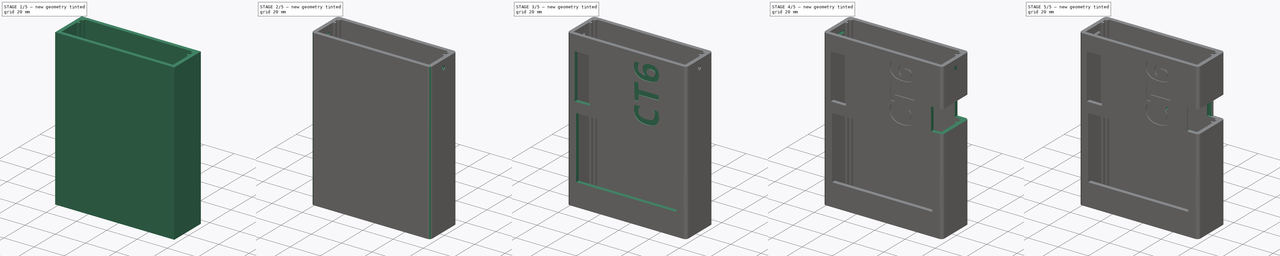
[diagram: build sequence overview — one tinted view per stage of 5, left to right]
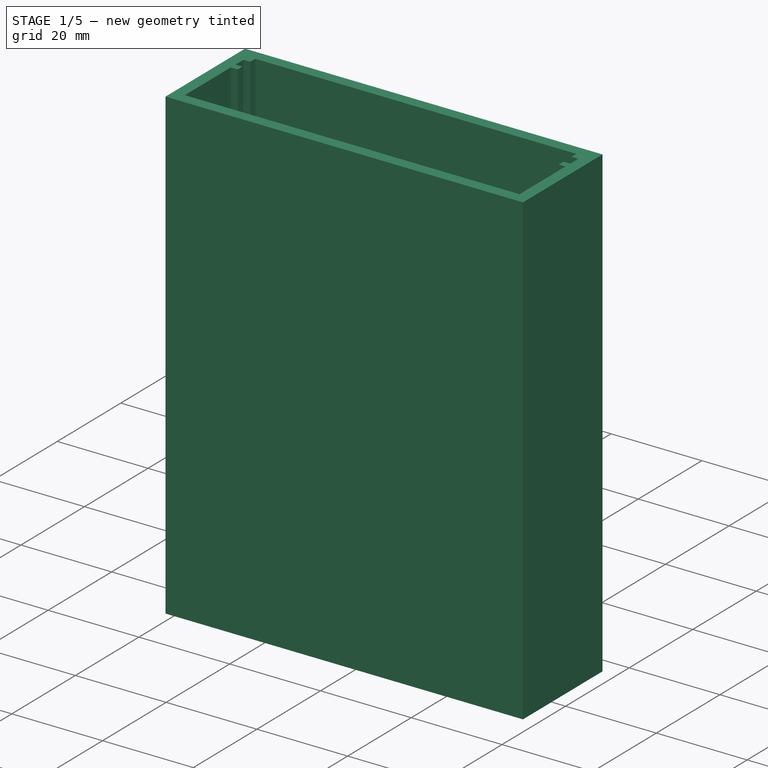
[diagram: stage 1 of 5 — iso view after this stage's code; geometry added in this stage tinted green]
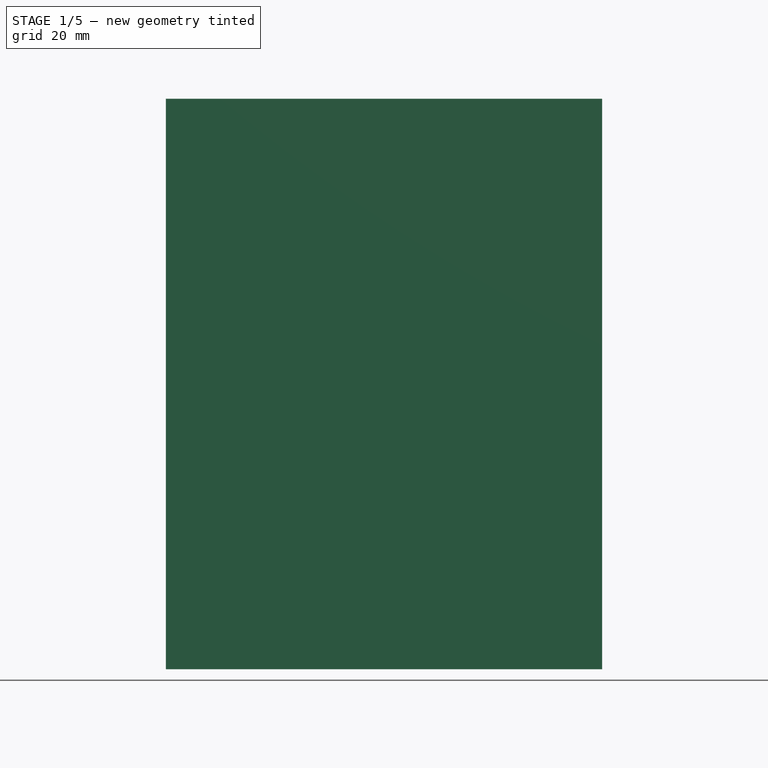
[diagram: stage 1 of 5 — front view after this stage's code; geometry added in this stage tinted green]
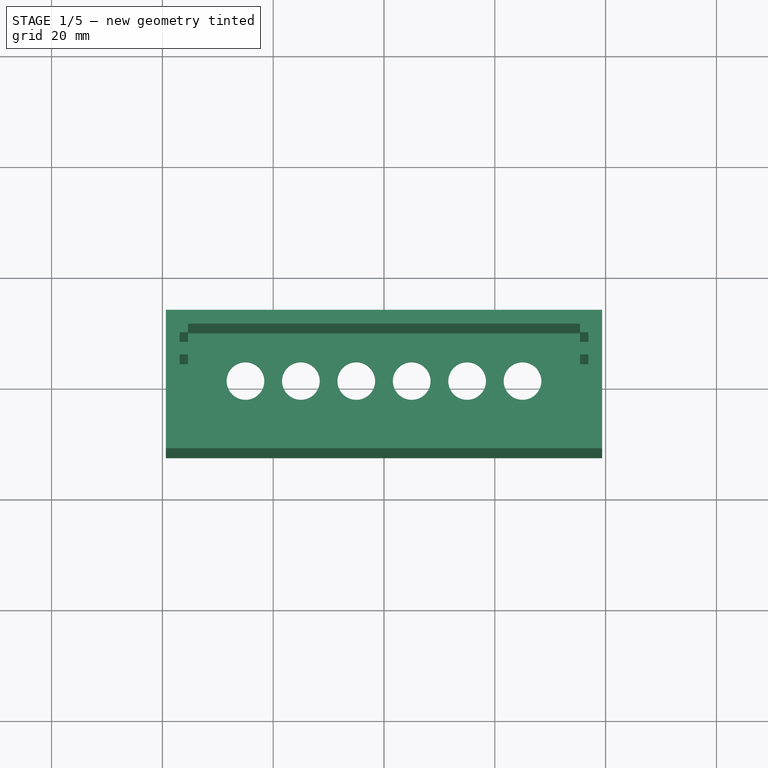
[diagram: stage 1 of 5 — top view after this stage's code; geometry added in this stage tinted green]
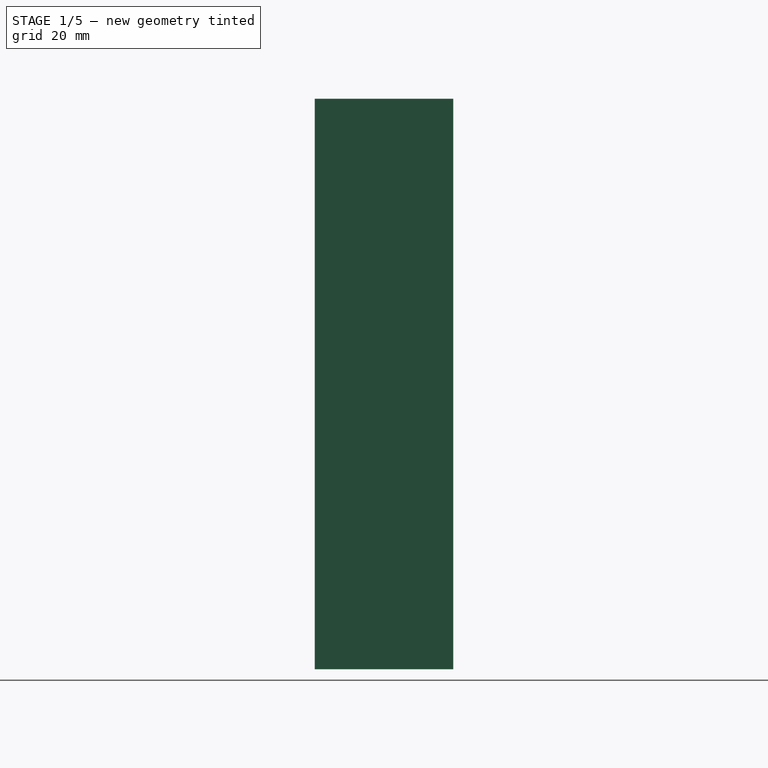
[diagram: stage 1 of 5 — right view after this stage's code; geometry added in this stage tinted green]
FCSTD DOCUMENT  (FreeCAD 0.21R33694 (Git))
Label: box
License: All rights reserved
LicenseURL: http://en.wikipedia.org/wiki/All_rights_reserved
objects: Sketcher::SketchObject×23, PartDesign::Pocket×19, PartDesign::Pad×11, Part::Part2DObjectPython×7, PartDesign::Chamfer×7, PartDesign::Fillet×1, PartDesign::Body×1
note: 107 computed .brp shape members not serialized (recipe doc carries the construction recipe); baked Part::Feature solids carry a one-line shape summary decoded from their .brp

FEATURE [Sketcher::SketchObject] Sketch
  FullyConstrained = true
  MapMode = 5
  Support = -> [XY_Plane]
  sketch-geometry (4):
    g0: LineSegment StartX=-36.875 StartY=10 StartZ=0 EndX=36.875 EndY=10 EndZ=0
    g1: LineSegment StartX=36.875 StartY=10 StartZ=0 EndX=36.875 EndY=-10 EndZ=0
    g2: LineSegment StartX=36.875 StartY=-10 StartZ=0 EndX=-36.875 EndY=-10 EndZ=0
    g3: LineSegment StartX=-36.875 StartY=-10 StartZ=0 EndX=-36.875 EndY=10 EndZ=0
  constraints (12):
    c: Coincident(g0,g1)
    c: Coincident(g1,g2)
    c: Coincident(g2,g3)
    c: Coincident(g3,g0)
    c: Horizontal(g0)
    c: Horizontal(g2)
    c: Vertical(g1)
    c: Vertical(g3)
    c: DistanceY(g1,g1) = 20
    c: DistanceX(g0,g0) = 73.75
    c: DistanceX(g0,g-1) = 36.875
    c: DistanceY(g-1,g0) = 10
FEATURE [PartDesign::Pad] Pad
  Direction = (0,0,1)
  Length = 2.5
  Length2 = 10
  Profile = -> Sketch
  ReferenceAxis = -> Sketch [N_Axis]
  Type = 0
FEATURE [Sketcher::SketchObject] Sketch001
  ExternalGeometry = -> [Pad]
  FullyConstrained = true
  MapMode = 5
  Placement = pos=(36.875,0,0) rot=(0.57735,0.57735,0.57735;2.0944rad)
  Support = -> [Pad]
  sketch-geometry (4):
    g0: LineSegment StartX=-12.5 StartY=0 StartZ=0 EndX=12.5 EndY=0 EndZ=0
    g1: LineSegment StartX=12.5 StartY=0 StartZ=0 EndX=12.5 EndY=102.95 EndZ=0
    g2: LineSegment StartX=12.5 StartY=102.95 StartZ=0 EndX=-12.5 EndY=102.95 EndZ=0
    g3: LineSegment StartX=-12.5 StartY=102.95 StartZ=0 EndX=-12.5 EndY=0 EndZ=0
  constraints (12):
    c: Coincident(g0,g1)
    c: Coincident(g1,g2)
    c: Coincident(g2,g3)
    c: Coincident(g3,g0)
    c: Horizontal(g0)
    c: Horizontal(g2)
    c: Vertical(g1)
    c: Vertical(g3)
    c: PointOnObject(g0,g-1)
    c: DistanceX(g-3,g0) = 2.5
    c: DistanceX(g0,g-4) = 2.5
    c: DistanceY(g-3,g1) = 100.45
FEATURE [PartDesign::Pad] Pad001
  BaseFeature = -> Pad
  Direction = (1,0,0)
  Length = 2.5
  Length2 = 10
  Profile = -> Sketch001
  ReferenceAxis = -> Sketch001 [N_Axis]
  Type = 0
FEATURE [Sketcher::SketchObject] Sketch002
  ExternalGeometry = -> [Pad001]
  FullyConstrained = true
  MapMode = 5
  Placement = pos=(-36.875,0,0) rot=(0.57735,-0.57735,-0.57735;2.0944rad)
  Support = -> [Pad001]
  sketch-geometry (4):
    g0: LineSegment StartX=-12.5 StartY=0 StartZ=0 EndX=12.5 EndY=0 EndZ=0
    g1: LineSegment StartX=12.5 StartY=0 StartZ=0 EndX=12.5 EndY=102.95 EndZ=0
    g2: LineSegment StartX=12.5 StartY=102.95 StartZ=0 EndX=-12.5 EndY=102.95 EndZ=0
    g3: LineSegment StartX=-12.5 StartY=102.95 StartZ=0 EndX=-12.5 EndY=0 EndZ=0
  constraints (11):
    c: Coincident(g0,g1)
    c: Coincident(g1,g2)
    c: Coincident(g2,g3)
    c: Coincident(g3,g0)
    c: Horizontal(g0)
    c: Horizontal(g2)
    c: Vertical(g1)
    c: Vertical(g3)
    c: Coincident(g0,g-5)
    c: DistanceX(g0,g-4) = 0
    c: DistanceY(g1,g-3) = 0
FEATURE [PartDesign::Pad] Pad002
  BaseFeature = -> Pad001
  Direction = (-1,0,0)
  Length = 2.5
  Length2 = 10
  Profile = -> Sketch002
  ReferenceAxis = -> Sketch002 [N_Axis]
  Type = 0
FEATURE [Sketcher::SketchObject] Sketch003
  ExternalGeometry = -> [Pad002]
  FullyConstrained = true
  MapMode = 5
  Placement = pos=(0,-10,0) rot=(1,0,0;1.5708rad)
  Support = -> [Pad002]
  sketch-geometry (4):
    g0: LineSegment StartX=-36.875 StartY=0 StartZ=0 EndX=36.875 EndY=0 EndZ=0
    g1: LineSegment StartX=36.875 StartY=0 StartZ=0 EndX=36.875 EndY=102.95 EndZ=0
    g2: LineSegment StartX=36.875 StartY=102.95 StartZ=0 EndX=-36.875 EndY=102.95 EndZ=0
    g3: LineSegment StartX=-36.875 StartY=102.95 StartZ=0 EndX=-36.875 EndY=0 EndZ=0
  constraints (11):
    c: Coincident(g0,g1)
    c: Coincident(g1,g2)
    c: Coincident(g2,g3)
    c: Coincident(g3,g0)
    c: Horizontal(g0)
    c: Horizontal(g2)
    c: Vertical(g1)
    c: Vertical(g3)
    c: Coincident(g0,g-3)
    c: DistanceX(g0,g-4) = 0
    c: DistanceY(g1,g-5) = 0
FEATURE [PartDesign::Pad] Pad003
  BaseFeature = -> Pad002
  Direction = (0,-1,2e-16)
  Length = 2.5
  Length2 = 10
  Profile = -> Sketch003
  ReferenceAxis = -> Sketch003 [N_Axis]
  Type = 0
FEATURE [Sketcher::SketchObject] Sketch004
  ExternalGeometry = -> [Pad003]
  FullyConstrained = true
  MapMode = 5
  Placement = pos=(0,10,0) rot=(0,0.707107,0.707107;3.14159rad)
  Support = -> [Pad003]
  sketch-geometry (4):
    g0: LineSegment StartX=-36.875 StartY=0 StartZ=0 EndX=36.875 EndY=0 EndZ=0
    g1: LineSegment StartX=36.875 StartY=0 StartZ=0 EndX=36.875 EndY=102.95 EndZ=0
    g2: LineSegment StartX=36.875 StartY=102.95 StartZ=0 EndX=-36.875 EndY=102.95 EndZ=0
    g3: LineSegment StartX=-36.875 StartY=102.95 StartZ=0 EndX=-36.875 EndY=0 EndZ=0
  constraints (11):
    c: Coincident(g0,g1)
    c: Coincident(g1,g2)
    c: Coincident(g2,g3)
    c: Coincident(g3,g0)
    c: Horizontal(g0)
    c: Horizontal(g2)
    c: Vertical(g1)
    c: Vertical(g3)
    c: Coincident(g0,g-3)
    c: DistanceX(g0,g-4) = 0
    c: DistanceY(g1,g-5) = 0
FEATURE [PartDesign::Pad] Pad004
  BaseFeature = -> Pad003
  Direction = (0,1,-2e-16)
  Length = 2.5
  Length2 = 10
  Profile = -> Sketch004
  ReferenceAxis = -> Sketch004 [N_Axis]
  Type = 0
FEATURE [Sketcher::SketchObject] Sketch005  label="Sketch_3_5_mm_jack_holes"
  ExternalGeometry = -> [Pad004]
  FullyConstrained = true
  MapMode = 5
  Placement = pos=(0,0,0) rot=(1,0,0;3.14159rad)
  Support = -> [Pad004]
  sketch-geometry (6):
    g0: Circle CenterX=-25 CenterY=-1.4 CenterZ=0 NormalX=0 NormalY=0 NormalZ=1 AngleXU=0 Radius=3.4
    g1: Circle CenterX=-15 CenterY=-1.4 CenterZ=0 NormalX=0 NormalY=0 NormalZ=1 AngleXU=0 Radius=3.4
    g2: Circle CenterX=-5 CenterY=-1.4 CenterZ=0 NormalX=0 NormalY=0 NormalZ=1 AngleXU=0 Radius=3.4
    g3: Circle CenterX=5 CenterY=-1.4 CenterZ=0 NormalX=0 NormalY=0 NormalZ=1 AngleXU=0 Radius=3.4
    g4: Circle CenterX=15 CenterY=-1.4 CenterZ=0 NormalX=0 NormalY=0 NormalZ=1 AngleXU=0 Radius=3.4
    g5: Circle CenterX=25 CenterY=-1.4 CenterZ=0 NormalX=0 NormalY=0 NormalZ=1 AngleXU=0 Radius=3.4
  constraints (14):
    c: Equal(g0, g1-g5) x5
    c: Diameter(g0) = 6.8
    c: Horizontal(g0,g1)
    c: Horizontal(g1,g2)
    c: Horizontal(g2,g3)
    c: Horizontal(g3,g4)
    c: Horizontal(g4,g5)
    c: DistanceX(g0,g1) = 10
    c: DistanceX(g1,g2) = 10
    c: DistanceX(g2,g3) = 10
    c: DistanceX(g3,g4) = 10
    c: DistanceX(g4,g5) = 10
    c: DistanceX(g2,g-1) = 5
    c: DistanceY(g-3,g5) = 8.6
FEATURE [PartDesign::Pocket] Pocket
  BaseFeature = -> Pad004
  Direction = (0,0,1)
  Length = 5
  Length2 = 5
  Profile = -> Sketch005
  ReferenceAxis = -> Sketch005 [N_Axis]
  Type = 0
FEATURE [Sketcher::SketchObject] Sketch006
  ExternalGeometry = -> [Pocket]
  FullyConstrained = true
  MapMode = 5
  Placement = pos=(-36.875,0,0) rot=(0.57735,0.57735,0.57735;2.0944rad)
  Support = -> [Pocket]
  sketch-geometry (8):
    g0: LineSegment StartX=8.45 StartY=2.5 StartZ=0 EndX=10 EndY=2.5 EndZ=0
    g1: LineSegment StartX=10 StartY=2.5 StartZ=0 EndX=10 EndY=102.95 EndZ=0
    g2: LineSegment StartX=10 StartY=102.95 StartZ=0 EndX=8.45 EndY=102.95 EndZ=0
    g3: LineSegment StartX=8.45 StartY=102.95 StartZ=0 EndX=8.45 EndY=2.5 EndZ=0
    g4: LineSegment StartX=5.95 StartY=2.5 StartZ=0 EndX=4.45 EndY=2.5 EndZ=0
    g5: LineSegment StartX=4.45 StartY=2.5 StartZ=0 EndX=4.45 EndY=102.95 EndZ=0
    g6: LineSegment StartX=4.45 StartY=102.95 StartZ=0 EndX=5.95 EndY=102.95 EndZ=0
    g7: LineSegment StartX=5.95 StartY=102.95 StartZ=0 EndX=5.95 EndY=2.5 EndZ=0
  constraints (23):
    c: Coincident(g0,g1)
    c: Coincident(g1,g2)
    c: Coincident(g2,g3)
    c: Coincident(g3,g0)
    c: Horizontal(g0)
    c: Horizontal(g2)
    c: Vertical(g1)
    c: Vertical(g3)
    c: Coincident(g4,g5)
    c: Coincident(g5,g6)
    c: Coincident(g6,g7)
    c: Coincident(g7,g4)
    c: Horizontal(g4)
    c: Horizontal(g6)
    c: Vertical(g5)
    c: Vertical(g7)
    c: Coincident(g1,g-3)
    c: DistanceX(g2,g2) = 1.55
    c: DistanceX(g6,g2) = 2.5
    c: DistanceX(g6,g6) = 1.5
    c: Horizontal(g2,g6)
    c: Horizontal(g0,g4)
    c: Horizontal(g4,g-4)
FEATURE [PartDesign::Pad] Pad005
  BaseFeature = -> Pocket
  Direction = (1,0,0)
  Length = 1.5
  Length2 = 10
  Profile = -> Sketch006
  ReferenceAxis = -> Sketch006 [N_Axis]
  Type = 0
FEATURE [Sketcher::SketchObject] Sketch007
  ExternalGeometry = -> [Pad005]
  FullyConstrained = true
  MapMode = 5
  Placement = pos=(36.875,0,0) rot=(0.57735,-0.57735,-0.57735;2.0944rad)
  Support = -> [Pad005]
  sketch-geometry (8):
    g0: LineSegment StartX=-10 StartY=2.5 StartZ=0 EndX=-8.45 EndY=2.5 EndZ=0
    g1: LineSegment StartX=-8.45 StartY=2.5 StartZ=0 EndX=-8.45 EndY=102.95 EndZ=0
    g2: LineSegment StartX=-8.45 StartY=102.95 StartZ=0 EndX=-10 EndY=102.95 EndZ=0
    g3: LineSegment StartX=-10 StartY=102.95 StartZ=0 EndX=-10 EndY=2.5 EndZ=0
    g4: LineSegment StartX=-5.95 StartY=2.5 StartZ=0 EndX=-4.45 EndY=2.5 EndZ=0
    g5: LineSegment StartX=-4.45 StartY=2.5 StartZ=0 EndX=-4.45 EndY=102.95 EndZ=0
    g6: LineSegment StartX=-4.45 StartY=102.95 StartZ=0 EndX=-5.95 EndY=102.95 EndZ=0
    g7: LineSegment StartX=-5.95 StartY=102.95 StartZ=0 EndX=-5.95 EndY=2.5 EndZ=0
  constraints (23):
    c: Coincident(g0,g1)
    c: Coincident(g1,g2)
    c: Coincident(g2,g3)
    c: Coincident(g3,g0)
    c: Horizontal(g0)
    c: Horizontal(g2)
    c: Vertical(g1)
    c: Vertical(g3)
    c: Coincident(g4,g5)
    c: Coincident(g5,g6)
    c: Coincident(g6,g7)
    c: Coincident(g7,g4)
    c: Horizontal(g4)
    c: Horizontal(g6)
    c: Vertical(g5)
    c: Vertical(g7)
    c: Coincident(g2,g-3)
    c: DistanceX(g2,g2) = 1.55
    c: DistanceX(g1,g6) = 2.5
    c: DistanceX(g6,g6) = 1.5
    c: Horizontal(g1,g6)
    c: Horizontal(g0,g4)
    c: Horizontal(g4,g-4)
FEATURE [PartDesign::Pad] Pad006
  BaseFeature = -> Pad005
  Direction = (-1,0,0)
  Length = 1.5
  Length2 = 10
  Profile = -> Sketch007
  ReferenceAxis = -> Sketch007 [N_Axis]
  Type = 0
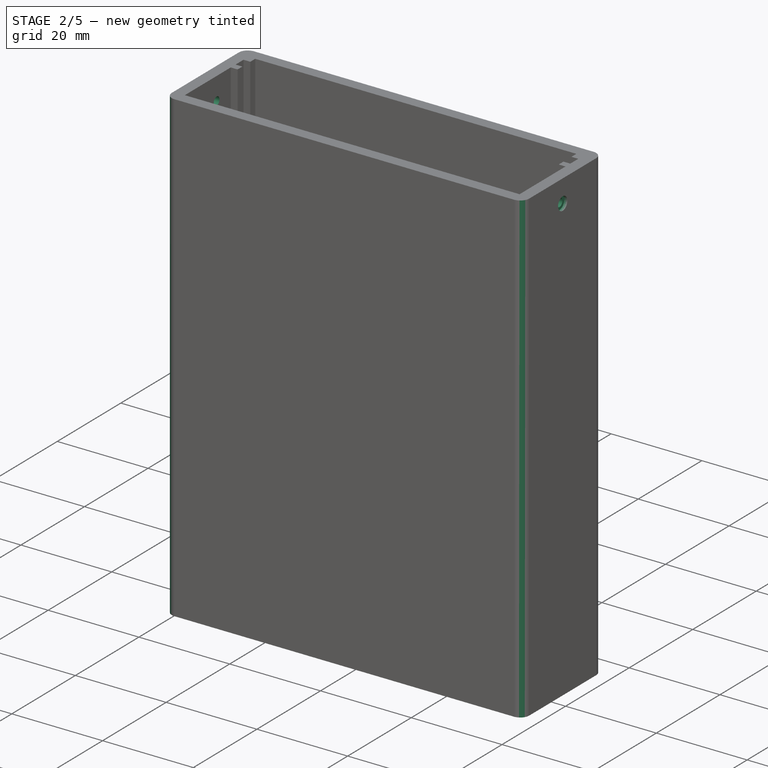
[diagram: stage 2 of 5 — iso view after this stage's code; geometry added in this stage tinted green]
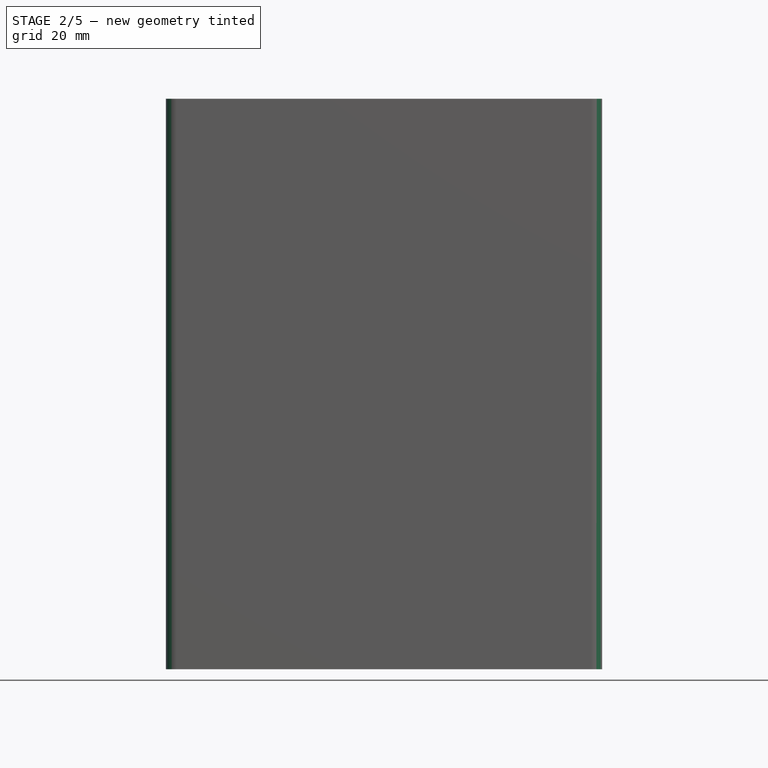
[diagram: stage 2 of 5 — front view after this stage's code; geometry added in this stage tinted green]
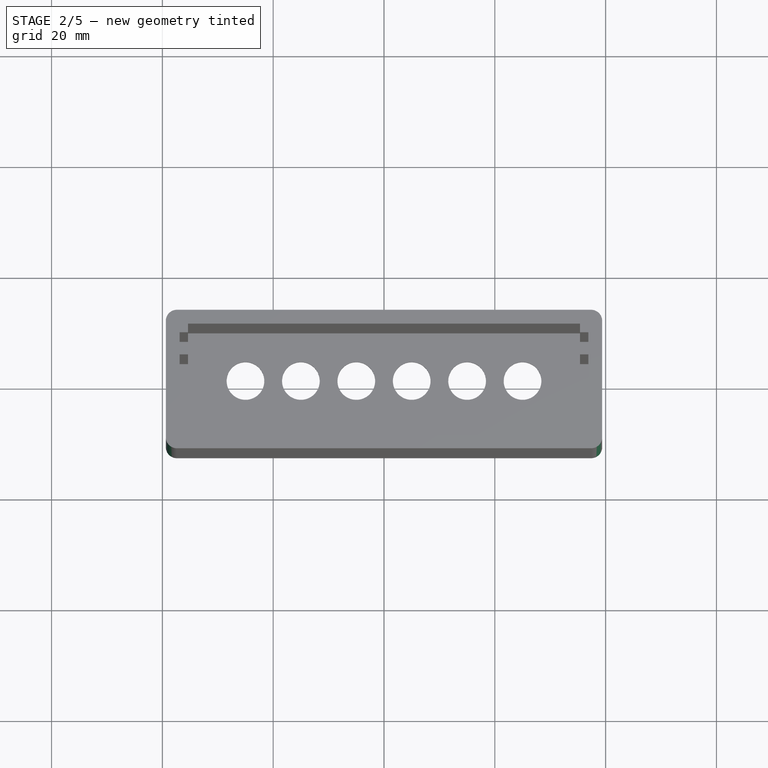
[diagram: stage 2 of 5 — top view after this stage's code; geometry added in this stage tinted green]
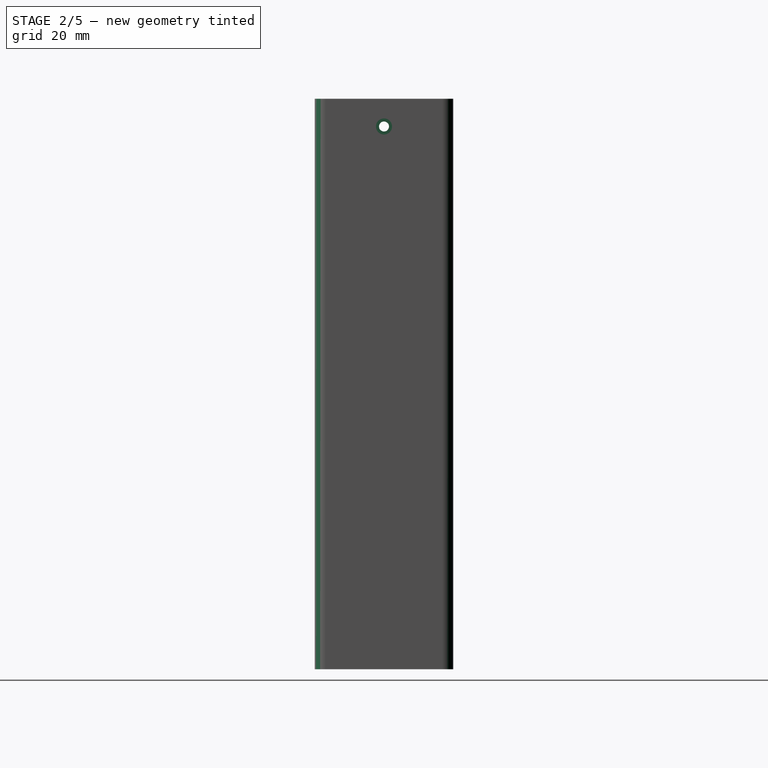
[diagram: stage 2 of 5 — right view after this stage's code; geometry added in this stage tinted green]
FEATURE [Sketcher::SketchObject] Sketch008
  ExternalGeometry = -> [Pad006]
  FullyConstrained = true
  MapMode = 5
  Placement = pos=(-39.375,0,0) rot=(0.57735,-0.57735,-0.57735;2.0944rad)
  Support = -> [Pad006]
  sketch-geometry (1):
    g0: Circle CenterX=0 CenterY=97.95 CenterZ=0 NormalX=0 NormalY=0 NormalZ=1 AngleXU=0 Radius=1.45
  constraints (3):
    c: PointOnObject(g0,g-2)
    c: DistanceY(g0,g-3) = 5
    c: Diameter(g0) = 2.9
FEATURE [PartDesign::Pocket] Pocket001
  BaseFeature = -> Pad006
  Direction = (1,0,0)
  Length = 0.7
  Length2 = 5
  Profile = -> Sketch008
  ReferenceAxis = -> Sketch008 [N_Axis]
  Type = 0
FEATURE [Sketcher::SketchObject] Sketch009
  ExternalGeometry = -> [Pocket001]
  FullyConstrained = true
  MapMode = 5
  Placement = pos=(-38.675,0,0) rot=(0.57735,-0.57735,-0.57735;2.0944rad)
  Support = -> [Pocket001]
  sketch-geometry (1):
    g0: Circle CenterX=0 CenterY=97.95 CenterZ=0 NormalX=0 NormalY=0 NormalZ=1 AngleXU=0 Radius=0.9
  constraints (3):
    c: PointOnObject(g0,g-2)
    c: Diameter(g0) = 1.8
    c: DistanceY(g0,g-3) = 5
FEATURE [PartDesign::Pocket] Pocket002
  BaseFeature = -> Pocket001
  Direction = (1,0,0)
  Length = 5
  Length2 = 5
  Profile = -> Sketch009
  ReferenceAxis = -> Sketch009 [N_Axis]
  Type = 0
FEATURE [Sketcher::SketchObject] Sketch010
  ExternalGeometry = -> [Pocket002]
  FullyConstrained = true
  MapMode = 5
  Placement = pos=(39.375,0,0) rot=(0.57735,0.57735,0.57735;2.0944rad)
  Support = -> [Pocket002]
  sketch-geometry (1):
    g0: Circle CenterX=0 CenterY=97.95 CenterZ=0 NormalX=0 NormalY=0 NormalZ=1 AngleXU=0 Radius=1.45
  constraints (3):
    c: PointOnObject(g0,g-2)
    c: Diameter(g0) = 2.9
    c: DistanceY(g0,g-3) = 5
FEATURE [PartDesign::Pocket] Pocket003
  BaseFeature = -> Pocket002
  Direction = (-1,0,0)
  Length = 0.7
  Length2 = 5
  Profile = -> Sketch010
  ReferenceAxis = -> Sketch010 [N_Axis]
  Type = 0
FEATURE [Sketcher::SketchObject] Sketch011
  ExternalGeometry = -> [Pocket003]
  FullyConstrained = true
  MapMode = 5
  Placement = pos=(38.675,0,0) rot=(0.57735,0.57735,0.57735;2.0944rad)
  Support = -> [Pocket003]
  sketch-geometry (1):
    g0: Circle CenterX=0 CenterY=97.95 CenterZ=0 NormalX=0 NormalY=0 NormalZ=1 AngleXU=0 Radius=0.9
  constraints (3):
    c: PointOnObject(g0,g-2)
    c: DistanceY(g0,g-3) = 5
    c: Diameter(g0) = 1.8
FEATURE [PartDesign::Pocket] Pocket004
  BaseFeature = -> Pocket003
  Direction = (-1,0,0)
  Length = 5
  Length2 = 5
  Profile = -> Sketch011
  ReferenceAxis = -> Sketch011 [N_Axis]
  Type = 0
FEATURE [PartDesign::Fillet] Fillet
  Base = -> Pocket004 [Edge76,Edge74,Edge9,Edge12]
  BaseFeature = -> Pocket004
  Radius = 2
  SupportTransform = false
  UseAllEdges = false
FEATURE [Part::Part2DObjectPython] ShapeString  # Draft 2D object (typed FeaturePython)
  FontFile = <path>
  MakeFace = true
  Placement = pos=(-27.7624,-3.33748,0) rot=(1,0,0;3.14159rad)
  Size = 6
  String = 1
  Tracking = 0
FEATURE [Part::Part2DObjectPython] ShapeString001  # Draft 2D object (typed FeaturePython)
  FontFile = <path>
  MakeFace = true
  Placement = pos=(-17.582,-3.32246,0) rot=(1,0,0;3.14159rad)
  Size = 6
  String = 2
  Tracking = 0
FEATURE [Part::Part2DObjectPython] ShapeString002  # Draft 2D object (typed FeaturePython)
  FontFile = <path>
  MakeFace = true
  Placement = pos=(-7.67591,-3.47804,0) rot=(1,0,0;3.14159rad)
  Size = 6
  String = 3
  Tracking = 0
FEATURE [Part::Part2DObjectPython] ShapeString003  # Draft 2D object (typed FeaturePython)
  FontFile = <path>
  MakeFace = true
  Placement = pos=(2.11873,-3.32196,0) rot=(1,0,0;3.14159rad)
  Size = 6
  String = 4
  Tracking = 0
FEATURE [Part::Part2DObjectPython] ShapeString004  # Draft 2D object (typed FeaturePython)
  FontFile = <path>
  MakeFace = true
  Placement = pos=(12.4455,-3.47804,0) rot=(1,0,0;3.14159rad)
  Size = 6
  String = 5
  Tracking = 0
FEATURE [Part::Part2DObjectPython] ShapeString005  # Draft 2D object (typed FeaturePython)
  FontFile = <path>
  MakeFace = true
  Placement = pos=(22.2283,-3.54824,0) rot=(1,0,0;3.14159rad)
  Size = 6
  String = 6
  Tracking = 0
FEATURE [PartDesign::Pocket] Pocket005
  BaseFeature = -> Fillet
  Direction = (0,0,1)
  Length = 0.5
  Length2 = 5
  Profile = -> ShapeString
  ReferenceAxis = -> ShapeString [N_Axis]
  Type = 0
FEATURE [PartDesign::Pocket] Pocket006
  BaseFeature = -> Pocket005
  Direction = (0,0,1)
  Length = 0.5
  Length2 = 5
  Profile = -> ShapeString001
  ReferenceAxis = -> ShapeString001 [N_Axis]
  Type = 0
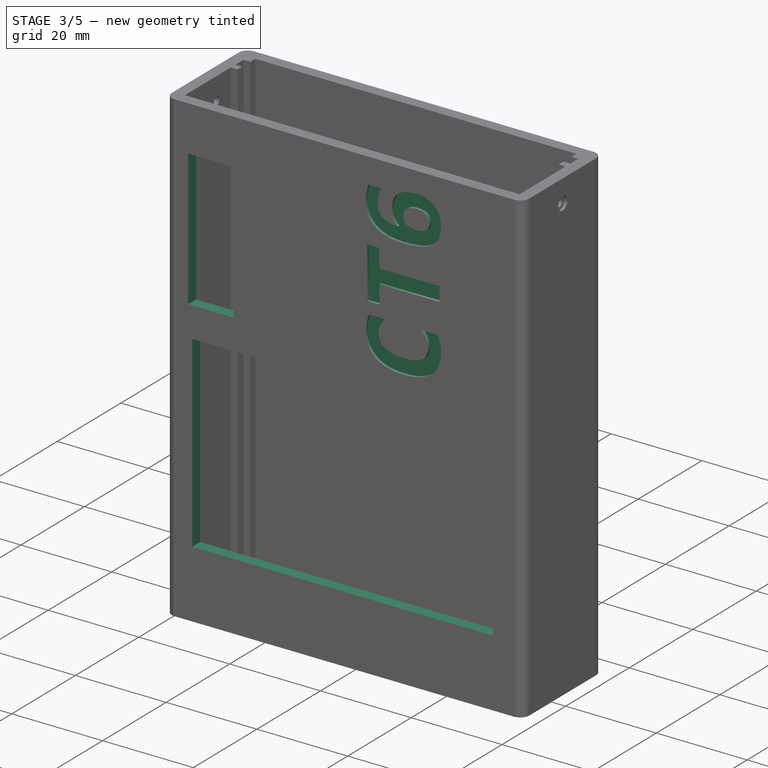
[diagram: stage 3 of 5 — iso view after this stage's code; geometry added in this stage tinted green]
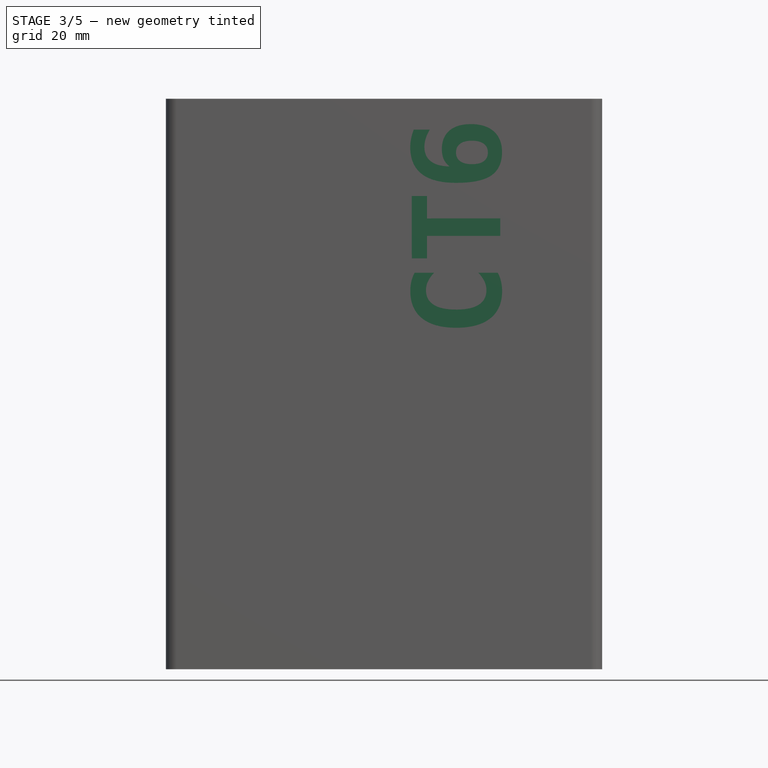
[diagram: stage 3 of 5 — front view after this stage's code; geometry added in this stage tinted green]
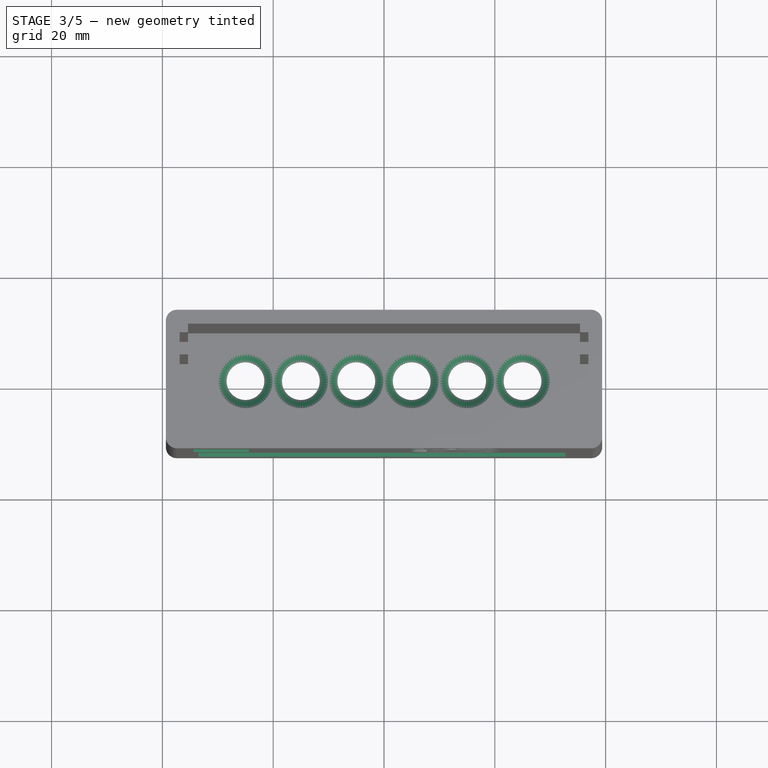
[diagram: stage 3 of 5 — top view after this stage's code; geometry added in this stage tinted green]
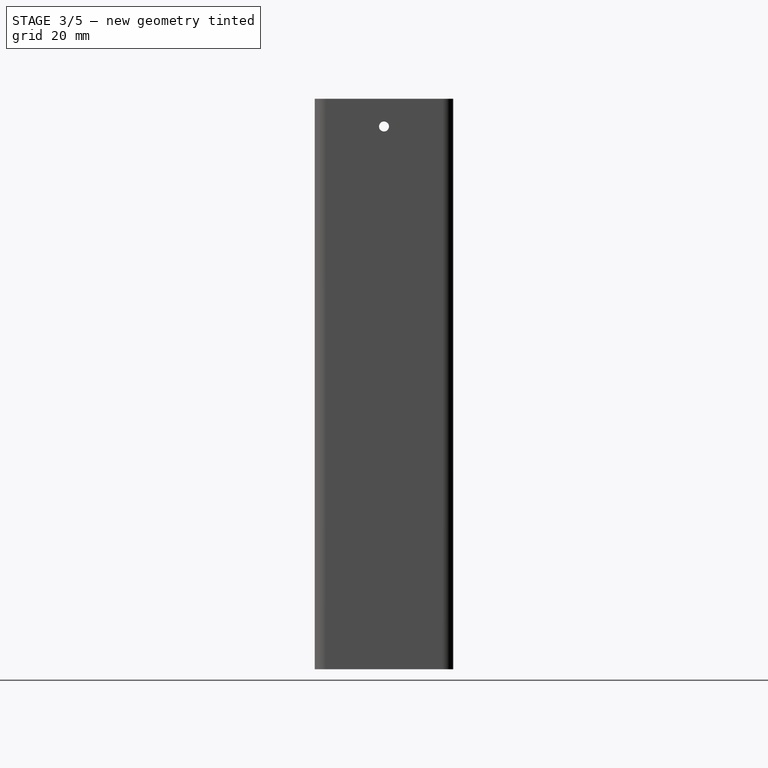
[diagram: stage 3 of 5 — right view after this stage's code; geometry added in this stage tinted green]
FEATURE [PartDesign::Pocket] Pocket007
  BaseFeature = -> Pocket006
  Direction = (0,0,1)
  Length = 0.5
  Length2 = 5
  Profile = -> ShapeString005
  ReferenceAxis = -> ShapeString005 [N_Axis]
  Type = 0
FEATURE [PartDesign::Pocket] Pocket008
  BaseFeature = -> Pocket007
  Direction = (0,0,1)
  Length = 0.5
  Length2 = 5
  Profile = -> ShapeString004
  ReferenceAxis = -> ShapeString004 [N_Axis]
  Type = 0
FEATURE [PartDesign::Pocket] Pocket009
  BaseFeature = -> Pocket008
  Direction = (0,0,1)
  Length = 0.5
  Length2 = 5
  Profile = -> ShapeString003
  ReferenceAxis = -> ShapeString003 [N_Axis]
  Type = 0
FEATURE [PartDesign::Pocket] Pocket010
  BaseFeature = -> Pocket009
  Direction = (0,0,1)
  Length = 0.5
  Length2 = 5
  Profile = -> ShapeString002
  ReferenceAxis = -> ShapeString002 [N_Axis]
  Type = 0
FEATURE [Part::Part2DObjectPython] ShapeString006  # Draft 2D object (typed FeaturePython)
  FontFile = <path>
  MakeFace = true
  Placement = pos=(21,-12.5,60) rot=(0.57735,-0.57735,0.57735;2.09527rad)
  Size = 17
  String = CT6
  Tracking = 0
FEATURE [PartDesign::Pocket] Pocket011
  BaseFeature = -> Pocket010
  Direction = (-0.00050396,1,0.000503706)
  Length = 0.6
  Length2 = 5
  Profile = -> ShapeString006
  ReferenceAxis = -> ShapeString006 [N_Axis]
  Type = 0
FEATURE [PartDesign::Chamfer] Chamfer
  Angle = 45
  Base = -> Pocket011 [Edge383,Edge385,Edge387,Edge389,Edge391,Edge393]
  BaseFeature = -> Pocket011
  ChamferType = 0
  FlipDirection = false
  Size = 1.5
  Size2 = 1
  SupportTransform = false
  UseAllEdges = false
FEATURE [Sketcher::SketchObject] Sketch012
  FullyConstrained = true
  MapMode = 5
  Placement = pos=(0,-12.5,2.8e-15) rot=(1,0,0;1.5708rad)
  Support = -> [Chamfer]
  sketch-geometry (4):
    g0: LineSegment StartX=-33.5 StartY=14.88 StartZ=0 EndX=32.75 EndY=14.88 EndZ=0
    g1: LineSegment StartX=32.75 StartY=14.88 StartZ=0 EndX=32.75 EndY=56.28 EndZ=0
    g2: LineSegment StartX=32.75 StartY=56.28 StartZ=0 EndX=-33.5 EndY=56.28 EndZ=0
    g3: LineSegment StartX=-33.5 StartY=56.28 StartZ=0 EndX=-33.5 EndY=14.88 EndZ=0
  constraints (12):
    c: Coincident(g0,g1)
    c: Coincident(g1,g2)
    c: Coincident(g2,g3)
    c: Coincident(g3,g0)
    c: Horizontal(g0)
    c: Horizontal(g2)
    c: Vertical(g1)
    c: Vertical(g3)
    c: DistanceX(g2,g2) = 66.25
    c: DistanceY(g3,g3) = 41.4
    c: DistanceY(g-1,g0) = 14.88
    c: DistanceX(g0,g-1) = 33.5
FEATURE [PartDesign::Pocket] Pocket012
  BaseFeature = -> Chamfer
  Direction = (0,1,-2e-16)
  Length = 5
  Length2 = 5
  Profile = -> Sketch012
  ReferenceAxis = -> Sketch012 [N_Axis]
  Type = 0
FEATURE [Sketcher::SketchObject] Sketch013
  ExternalGeometry = -> [Pocket012]
  FullyConstrained = true
  MapMode = 5
  Placement = pos=(0,-12.5,2.8e-15) rot=(1,0,0;1.5708rad)
  Support = -> [Pocket012]
  sketch-geometry (4):
    g0: LineSegment StartX=-34.375 StartY=92.95 StartZ=0 EndX=-24.375 EndY=92.95 EndZ=0
    g1: LineSegment StartX=-24.375 StartY=92.95 StartZ=0 EndX=-24.375 EndY=62.95 EndZ=0
    g2: LineSegment StartX=-24.375 StartY=62.95 StartZ=0 EndX=-34.375 EndY=62.95 EndZ=0
    g3: LineSegment StartX=-34.375 StartY=62.95 StartZ=0 EndX=-34.375 EndY=92.95 EndZ=0
  constraints (12):
    c: Coincident(g0,g1)
    c: Coincident(g1,g2)
    c: Coincident(g2,g3)
    c: Coincident(g3,g0)
    c: Horizontal(g0)
    c: Horizontal(g2)
    c: Vertical(g1)
    c: Vertical(g3)
    c: DistanceY(g3,g3) = 30
    c: DistanceX(g0,g0) = 10
    c: DistanceX(g-3,g0) = 2.5
    c: DistanceY(g0,g-3) = 10
FEATURE [PartDesign::Pocket] Pocket013
  BaseFeature = -> Pocket012
  Direction = (0,1,-2e-16)
  Length = 5
  Length2 = 5
  Profile = -> Sketch013
  ReferenceAxis = -> Sketch013 [N_Axis]
  Type = 0
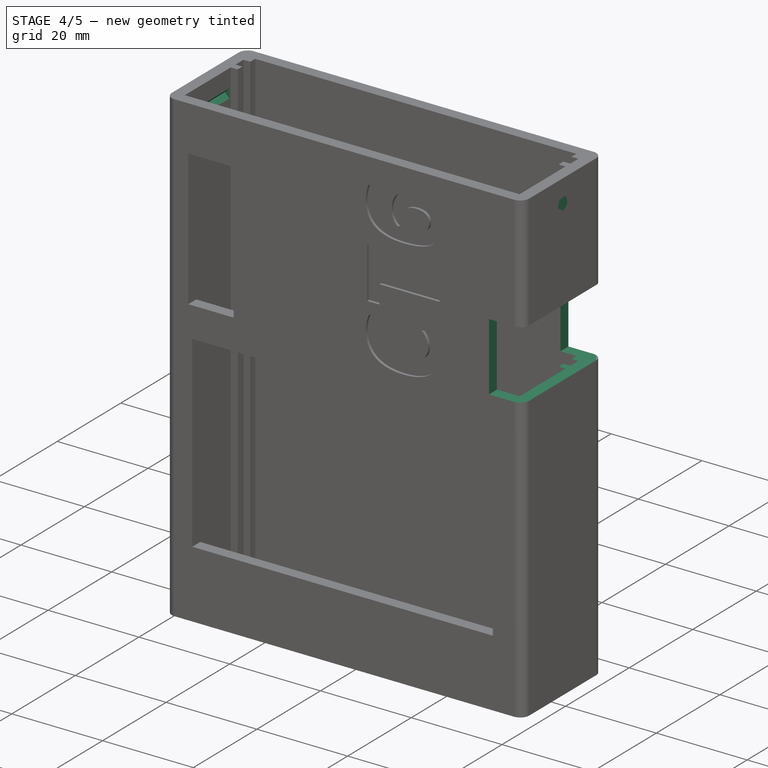
[diagram: stage 4 of 5 — iso view after this stage's code; geometry added in this stage tinted green]
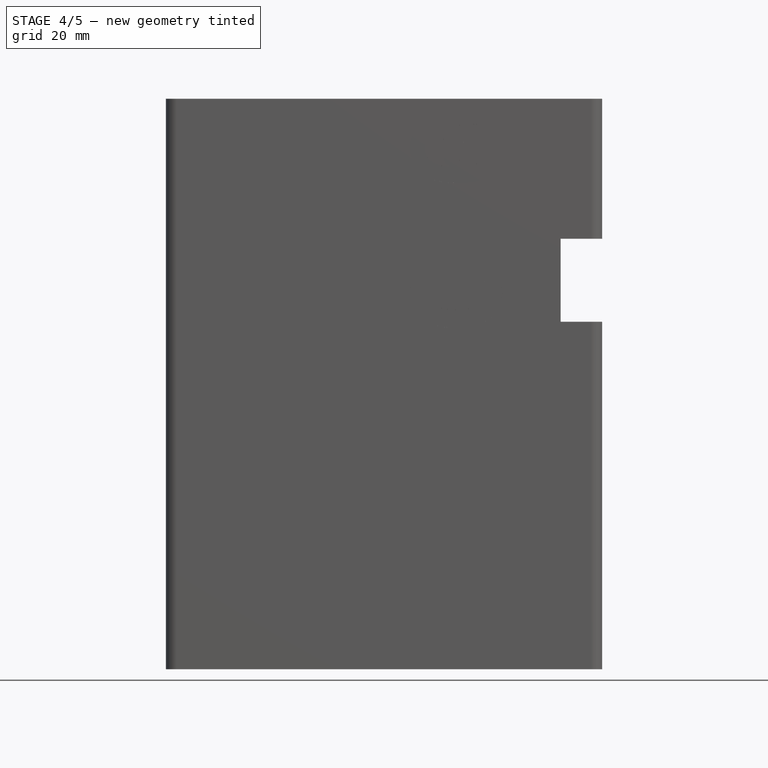
[diagram: stage 4 of 5 — front view after this stage's code; geometry added in this stage tinted green]
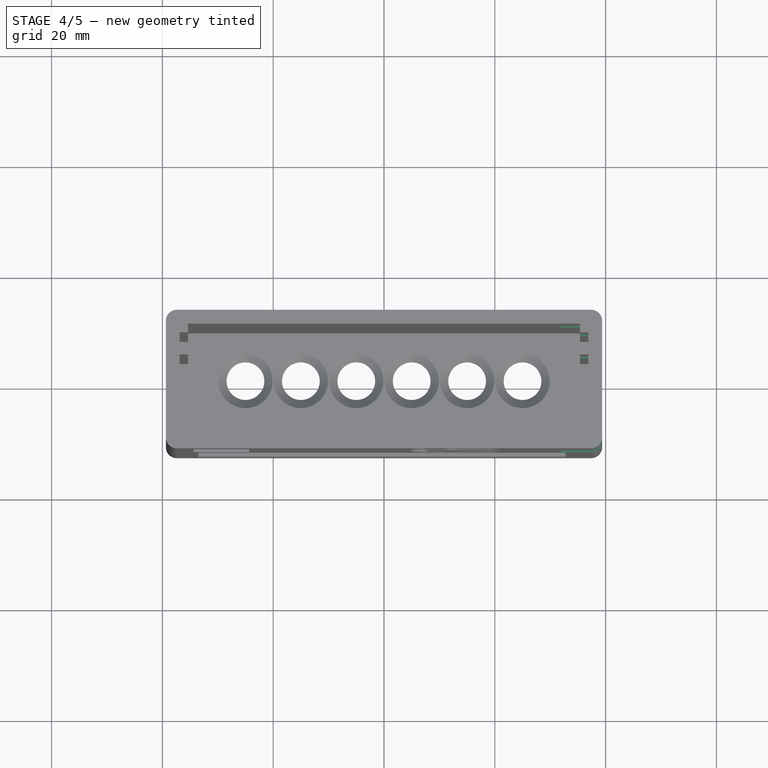
[diagram: stage 4 of 5 — top view after this stage's code; geometry added in this stage tinted green]
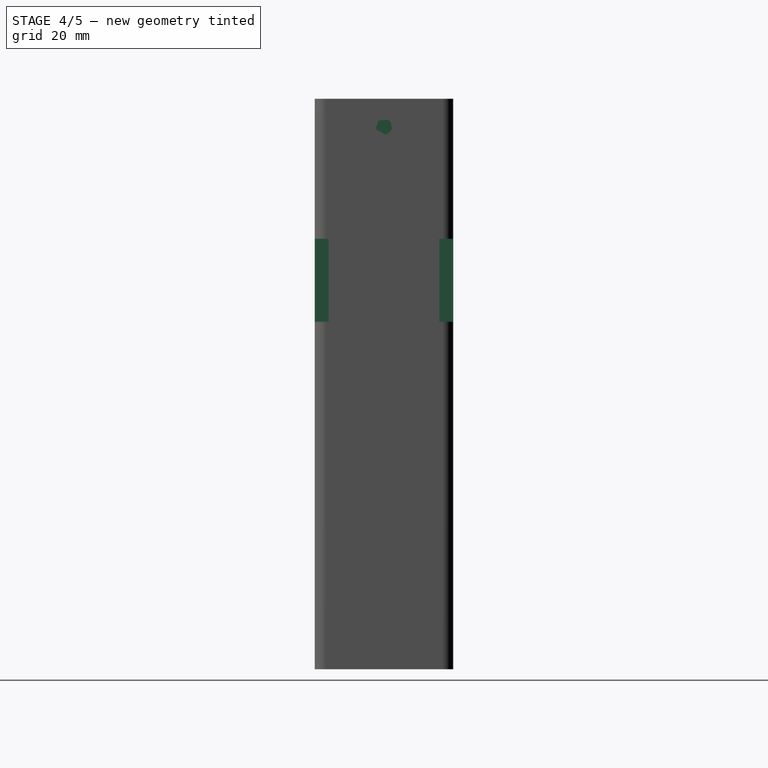
[diagram: stage 4 of 5 — right view after this stage's code; geometry added in this stage tinted green]
FEATURE [Sketcher::SketchObject] Sketch014
  ExternalGeometry = -> [Pocket013]
  FullyConstrained = true
  MapMode = 5
  Placement = pos=(39.375,0,0) rot=(0.57735,0.57735,0.57735;2.0944rad)
  Support = -> [Pocket013]
  sketch-geometry (1):
    g0: Circle CenterX=0 CenterY=97.95 CenterZ=0 NormalX=0 NormalY=0 NormalZ=1 AngleXU=0 Radius=2
  constraints (3):
    c: PointOnObject(g0,g-2)
    c: Diameter(g0) = 4
    c: DistanceY(g0,g-3) = 5
FEATURE [PartDesign::Pad] Pad007
  BaseFeature = -> Pocket013
  Direction = (1,0,0)
  Length = 2.5
  Length2 = 10
  Profile = -> Sketch014
  ReferenceAxis = -> Sketch014 [N_Axis]
  Reversed = true
  Type = 0
FEATURE [Sketcher::SketchObject] Sketch015
  ExternalGeometry = -> [Pad007]
  FullyConstrained = true
  MapMode = 5
  Placement = pos=(-39.375,0,0) rot=(0.57735,-0.57735,-0.57735;2.0944rad)
  Support = -> [Pad007]
  sketch-geometry (1):
    g0: Circle CenterX=0 CenterY=97.95 CenterZ=0 NormalX=0 NormalY=0 NormalZ=1 AngleXU=0 Radius=2
  constraints (3):
    c: PointOnObject(g0,g-2)
    c: Diameter(g0) = 4
    c: DistanceY(g0,g-3) = 5
FEATURE [PartDesign::Pad] Pad008
  BaseFeature = -> Pad007
  Direction = (-1,0,0)
  Length = 2.5
  Length2 = 10
  Profile = -> Sketch015
  ReferenceAxis = -> Sketch015 [N_Axis]
  Reversed = true
  Type = 0
FEATURE [Sketcher::SketchObject] Sketch016
  ExternalGeometry = -> [Pad008]
  FullyConstrained = true
  MapMode = 5
  Placement = pos=(36.875,0,0) rot=(0.57735,-0.57735,-0.57735;2.0944rad)
  Support = -> [Pad008]
  sketch-geometry (4):
    g0: LineSegment StartX=-4 StartY=98.95 StartZ=0 EndX=4 EndY=98.95 EndZ=0
    g1: LineSegment StartX=4 StartY=98.95 StartZ=0 EndX=4 EndY=96.95 EndZ=0
    g2: LineSegment StartX=4 StartY=96.95 StartZ=0 EndX=-4 EndY=96.95 EndZ=0
    g3: LineSegment StartX=-4 StartY=96.95 StartZ=0 EndX=-4 EndY=98.95 EndZ=0
  constraints (12):
    c: Coincident(g0,g1)
    c: Coincident(g1,g2)
    c: Coincident(g2,g3)
    c: Coincident(g3,g0)
    c: Horizontal(g0)
    c: Horizontal(g2)
    c: Vertical(g1)
    c: Vertical(g3)
    c: DistanceX(g0,g0) = 8
    c: DistanceY(g1,g1) = 2
    c: DistanceY(g0,g-3) = 4
    c: DistanceX(g0,g-1) = 4
FEATURE [PartDesign::Pocket] Pocket014
  BaseFeature = -> Pad008
  Direction = (1,0,0)
  Length = 1
  Length2 = 5
  Profile = -> Sketch016
  ReferenceAxis = -> Sketch016 [N_Axis]
  Type = 0
FEATURE [PartDesign::Chamfer] Chamfer001
  Angle = 45
  Base = -> Pocket014 [Edge552,Edge547]
  BaseFeature = -> Pocket014
  ChamferType = 0
  FlipDirection = false
  Size = 0.99
  Size2 = 1
  SupportTransform = false
  UseAllEdges = false
FEATURE [Sketcher::SketchObject] Sketch017
  ExternalGeometry = -> [Chamfer001]
  FullyConstrained = true
  MapMode = 5
  Placement = pos=(-36.875,0,0) rot=(0.57735,0.57735,0.57735;2.0944rad)
  Support = -> [Chamfer001]
  sketch-geometry (4):
    g0: LineSegment StartX=-4 StartY=98.95 StartZ=0 EndX=4 EndY=98.95 EndZ=0
    g1: LineSegment StartX=4 StartY=98.95 StartZ=0 EndX=4 EndY=96.95 EndZ=0
    g2: LineSegment StartX=4 StartY=96.95 StartZ=0 EndX=-4 EndY=96.95 EndZ=0
    g3: LineSegment StartX=-4 StartY=96.95 StartZ=0 EndX=-4 EndY=98.95 EndZ=0
  constraints (12):
    c: Coincident(g0,g1)
    c: Coincident(g1,g2)
    c: Coincident(g2,g3)
    c: Coincident(g3,g0)
    c: Horizontal(g0)
    c: Horizontal(g2)
    c: Vertical(g1)
    c: Vertical(g3)
    c: DistanceX(g0,g0) = 8
    c: DistanceY(g1,g1) = 2
    c: DistanceY(g0,g-3) = 4
    c: DistanceX(g0,g-1) = 4
FEATURE [PartDesign::Pocket] Pocket015
  BaseFeature = -> Chamfer001
  Direction = (-1,0,0)
  Length = 1
  Length2 = 5
  Profile = -> Sketch017
  ReferenceAxis = -> Sketch017 [N_Axis]
  Type = 0
FEATURE [PartDesign::Chamfer] Chamfer002
  Angle = 45
  Base = -> Pocket015 [Edge167,Edge162]
  BaseFeature = -> Pocket015
  ChamferType = 0
  FlipDirection = false
  Size = 0.99
  Size2 = 1
  SupportTransform = false
  UseAllEdges = false
FEATURE [Sketcher::SketchObject] Sketch018
  ExternalGeometry = -> [Chamfer002]
  FullyConstrained = true
  MapMode = 5
  Placement = pos=(0,-12.5,2.8e-15) rot=(1,0,0;1.5708rad)
  Support = -> [Chamfer002]
  sketch-geometry (4):
    g0: LineSegment StartX=31.875 StartY=77.7 StartZ=0 EndX=39.375 EndY=77.7 EndZ=0
    g1: LineSegment StartX=39.375 StartY=77.7 StartZ=0 EndX=39.375 EndY=62.7 EndZ=0
    g2: LineSegment StartX=39.375 StartY=62.7 StartZ=0 EndX=31.875 EndY=62.7 EndZ=0
    g3: LineSegment StartX=31.875 StartY=62.7 StartZ=0 EndX=31.875 EndY=77.7 EndZ=0
  constraints (12):
    c: Coincident(g0,g1)
    c: Coincident(g1,g2)
    c: Coincident(g2,g3)
    c: Coincident(g3,g0)
    c: Horizontal(g0)
    c: Horizontal(g2)
    c: Vertical(g1)
    c: Vertical(g3)
    c: DistanceX(g0,g0) = 7.5
    c: DistanceX(g0,g-3) = 0
    c: DistanceY(g0,g-3) = 25.25
    c: DistanceY(g1,g1) = 15
FEATURE [PartDesign::Pocket] Pocket016
  BaseFeature = -> Chamfer002
  Direction = (0,1,-2e-16)
  Length = 40
  Length2 = 5
  Profile = -> Sketch018
  ReferenceAxis = -> Sketch018 [N_Axis]
  Type = 0
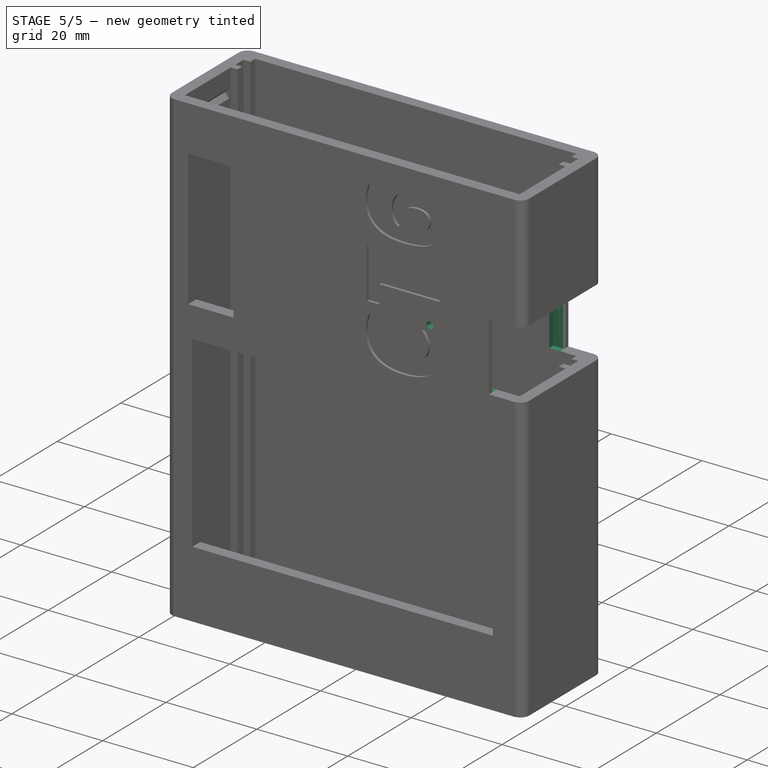
[diagram: stage 5 of 5 — iso view after this stage's code; geometry added in this stage tinted green]
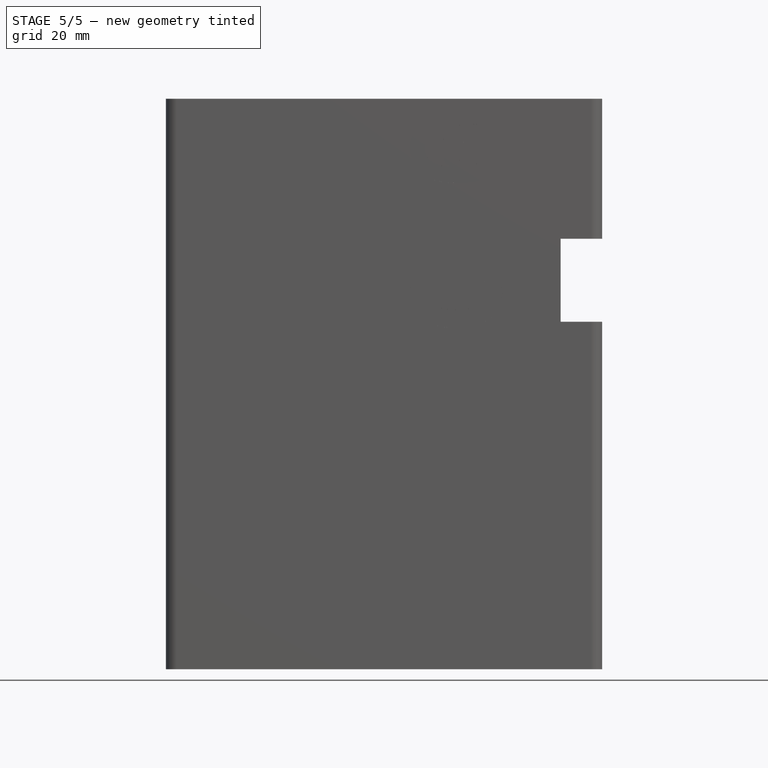
[diagram: stage 5 of 5 — front view after this stage's code; geometry added in this stage tinted green]
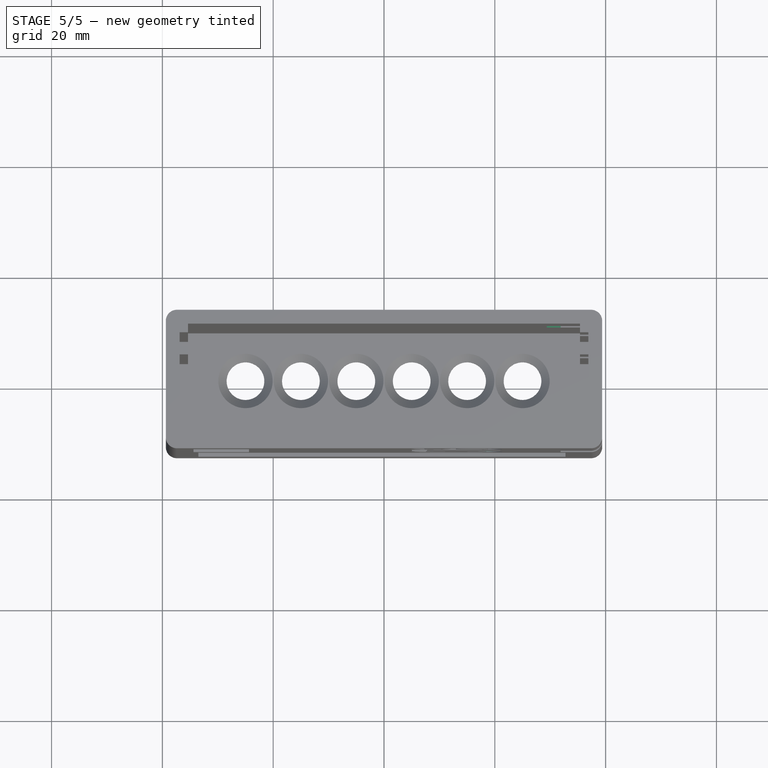
[diagram: stage 5 of 5 — top view after this stage's code; geometry added in this stage tinted green]
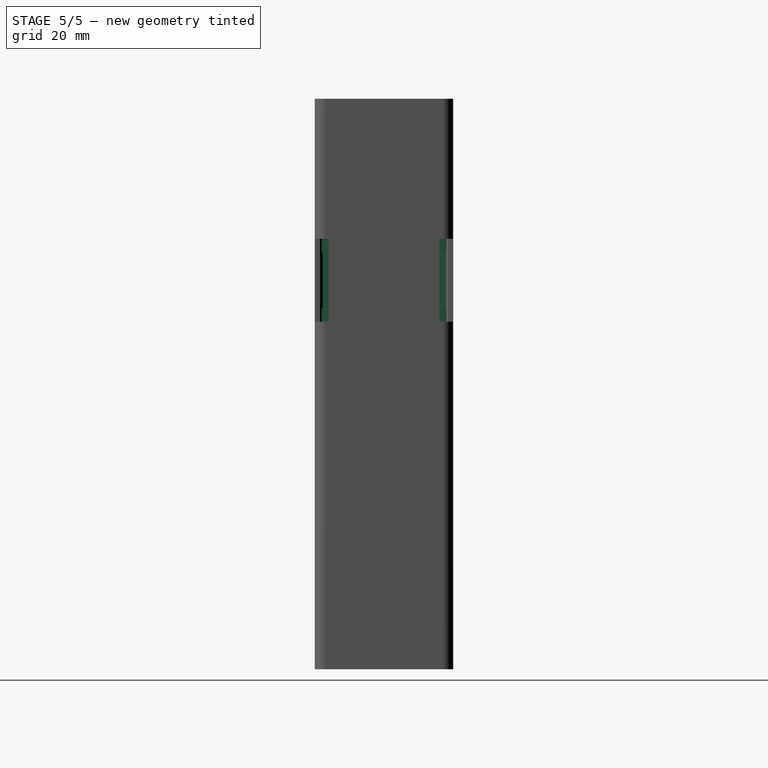
[diagram: stage 5 of 5 — right view after this stage's code; geometry added in this stage tinted green]
FEATURE [Sketcher::SketchObject] Sketch019
  ExternalGeometry = -> [Pocket016]
  FullyConstrained = false
  MapMode = 5
  Placement = pos=(31.875,0,0) rot=(0.57735,0.57735,0.57735;2.0944rad)
  Support = -> [Pocket016]
  sketch-geometry (8):
    g0: LineSegment StartX=-11.25 StartY=77.7 StartZ=0 EndX=-10 EndY=77.7 EndZ=0
    g1: LineSegment StartX=-10 StartY=77.7 StartZ=0 EndX=-10 EndY=62.6934 EndZ=0
    g2: LineSegment StartX=-10 StartY=62.6934 StartZ=0 EndX=-11.25 EndY=62.6934 EndZ=0
    g3: LineSegment StartX=-11.25 StartY=62.6934 StartZ=0 EndX=-11.25 EndY=77.7 EndZ=0
    g4: LineSegment StartX=10 StartY=77.7 StartZ=0 EndX=11.25 EndY=77.7 EndZ=0
    g5: LineSegment StartX=11.25 StartY=77.7 StartZ=0 EndX=11.25 EndY=62.6934 EndZ=0
    g6: LineSegment StartX=11.25 StartY=62.6934 StartZ=0 EndX=10 EndY=62.6934 EndZ=0
    g7: LineSegment StartX=10 StartY=62.6934 StartZ=0 EndX=10 EndY=77.7 EndZ=0
  constraints (21):
    c: Coincident(g0,g1)
    c: Coincident(g1,g2)
    c: Coincident(g2,g3)
    c: Coincident(g3,g0)
    c: Horizontal(g0)
    c: Horizontal(g2)
    c: Vertical(g1)
    c: Vertical(g3)
    c: Coincident(g4,g5)
    c: Coincident(g5,g6)
    c: Coincident(g6,g7)
    c: Coincident(g7,g4)
    c: Horizontal(g4)
    c: Horizontal(g6)
    c: Vertical(g5)
    c: Vertical(g7)
    c: Equal(g0,g4)
    c: DistanceX(g0,g0) = 1.25
    c: Coincident(g0,g-4)
    c: Coincident(g4,g-3)
    c: Horizontal(g6,g1)
FEATURE [PartDesign::Pocket] Pocket017
  BaseFeature = -> Pocket016
  Direction = (-1,0,0)
  Length = 2.5
  Length2 = 5
  Profile = -> Sketch019
  ReferenceAxis = -> Sketch019 [N_Axis]
  Type = 0
FEATURE [Sketcher::SketchObject] Sketch020
  ExternalGeometry = -> [Pocket017]
  FullyConstrained = true
  MapMode = 5
  Placement = pos=(0,11.25,0) rot=(1,0,0;1.5708rad)
  Support = -> [Pocket017]
  sketch-geometry (4):
    g0: LineSegment StartX=30.375 StartY=75.2 StartZ=0 EndX=30.875 EndY=75.2 EndZ=0
    g1: LineSegment StartX=30.875 StartY=75.2 StartZ=0 EndX=30.875 EndY=65.2 EndZ=0
    g2: LineSegment StartX=30.875 StartY=65.2 StartZ=0 EndX=30.375 EndY=65.2 EndZ=0
    g3: LineSegment StartX=30.375 StartY=65.2 StartZ=0 EndX=30.375 EndY=75.2 EndZ=0
  constraints (12):
    c: Coincident(g0,g1)
    c: Coincident(g1,g2)
    c: Coincident(g2,g3)
    c: Coincident(g3,g0)
    c: Horizontal(g0)
    c: Horizontal(g2)
    c: Vertical(g1)
    c: Vertical(g3)
    c: DistanceX(g0,g0) = 0.5
    c: DistanceY(g1,g1) = 10
    c: DistanceY(g0,g-3) = 2.5
    c: DistanceX(g0,g-3) = 1
FEATURE [PartDesign::Pad] Pad009
  BaseFeature = -> Pocket017
  Direction = (0,-1,2e-16)
  Length = 0.2
  Length2 = 10
  Profile = -> Sketch020
  ReferenceAxis = -> Sketch020 [N_Axis]
  Type = 0
FEATURE [PartDesign::Chamfer] Chamfer003
  Angle = 45
  Base = -> Pad009 [Edge547,Edge543]
  BaseFeature = -> Pad009
  ChamferType = 0
  FlipDirection = false
  Size = 0.19
  Size2 = 1
  SupportTransform = false
  UseAllEdges = false
FEATURE [Sketcher::SketchObject] Sketch021
  ExternalGeometry = -> [Chamfer003]
  FullyConstrained = true
  MapMode = 5
  Placement = pos=(0,-11.25,0) rot=(0,0.707107,0.707107;3.14159rad)
  Support = -> [Chamfer003]
  sketch-geometry (4):
    g0: LineSegment StartX=-30.875 StartY=65.1934 StartZ=0 EndX=-30.375 EndY=65.1934 EndZ=0
    g1: LineSegment StartX=-30.375 StartY=65.1934 StartZ=0 EndX=-30.375 EndY=75.1934 EndZ=0
    g2: LineSegment StartX=-30.375 StartY=75.1934 StartZ=0 EndX=-30.875 EndY=75.1934 EndZ=0
    g3: LineSegment StartX=-30.875 StartY=75.1934 StartZ=0 EndX=-30.875 EndY=65.1934 EndZ=0
  constraints (12):
    c: Coincident(g0,g1)
    c: Coincident(g1,g2)
    c: Coincident(g2,g3)
    c: Coincident(g3,g0)
    c: Horizontal(g0)
    c: Horizontal(g2)
    c: Vertical(g1)
    c: Vertical(g3)
    c: DistanceX(g0,g0) = 0.5
    c: DistanceY(g3,g3) = 10
    c: DistanceY(g-3,g0) = 2.5
    c: DistanceX(g-3,g0) = 1
FEATURE [PartDesign::Pad] Pad010
  BaseFeature = -> Chamfer003
  Direction = (0,1,-2e-16)
  Length = 0.2
  Length2 = 10
  Profile = -> Sketch021
  ReferenceAxis = -> Sketch021 [N_Axis]
  Type = 0
FEATURE [PartDesign::Chamfer] Chamfer004
  Angle = 45
  Base = -> Pad010 [Edge563,Edge560]
  BaseFeature = -> Pad010
  ChamferType = 0
  FlipDirection = false
  Size = 0.19
  Size2 = 1
  SupportTransform = false
  UseAllEdges = false
FEATURE [PartDesign::Chamfer] Chamfer005
  Angle = 45
  Base = -> Chamfer004 [Edge15]
  BaseFeature = -> Chamfer004
  ChamferType = 0
  FlipDirection = false
  Size = 0.3
  Size2 = 1
  SupportTransform = false
  UseAllEdges = false
FEATURE [PartDesign::Chamfer] Chamfer006
  Angle = 45
  Base = -> Chamfer005 [Edge167]
  BaseFeature = -> Chamfer005
  ChamferType = 0
  FlipDirection = false
  Size = 0.3
  Size2 = 1
  SupportTransform = false
  UseAllEdges = false
FEATURE [Sketcher::SketchObject] Sketch022
  ExternalGeometry = -> [Chamfer006]
  FullyConstrained = true
  MapMode = 5
  Placement = pos=(0,-12.5,2.8e-15) rot=(1,0,0;1.5708rad)
  Support = -> [Chamfer006]
  sketch-geometry (1):
    g0: Circle CenterX=18.875 CenterY=72.95 CenterZ=0 NormalX=0 NormalY=0 NormalZ=1 AngleXU=0 Radius=0.75
  constraints (3):
    c: DistanceY(g0,g-3) = 30
    c: DistanceX(g0,g-4) = 20.5
    c: Diameter(g0) = 1.5
FEATURE [PartDesign::Pocket] Pocket018
  BaseFeature = -> Chamfer006
  Direction = (0,1,-2e-16)
  Length = 5
  Length2 = 5
  Profile = -> Sketch022
  ReferenceAxis = -> Sketch022 [N_Axis]
  Type = 0
FEATURE [PartDesign::Body] Body
  Group = -> [Sketch,Pad,Sketch001,Pad001,Sketch002,Pad002,Sketch003,Pad003,Sketch004,Pad004,Sketch005,Pocket,Sketch006,Pad005,Sketch007,Pad006,Sketch008,Pocket001,Sketch009,Pocket002,Sketch010,Pocket003,Sketch011,Pocket004,Fillet,ShapeString,ShapeString001,ShapeString005,ShapeString004,ShapeString003,ShapeString002,Pocket005,Pocket006,Pocket007,Pocket008,Pocket009,Pocket010,ShapeString006,Pocket011,Chamfer,+28 more]
  Origin = -> Origin
  Tip = -> Pocket018
note: 7 file-system paths scrubbed to <path> (originals preserved in the JSON sidecar)
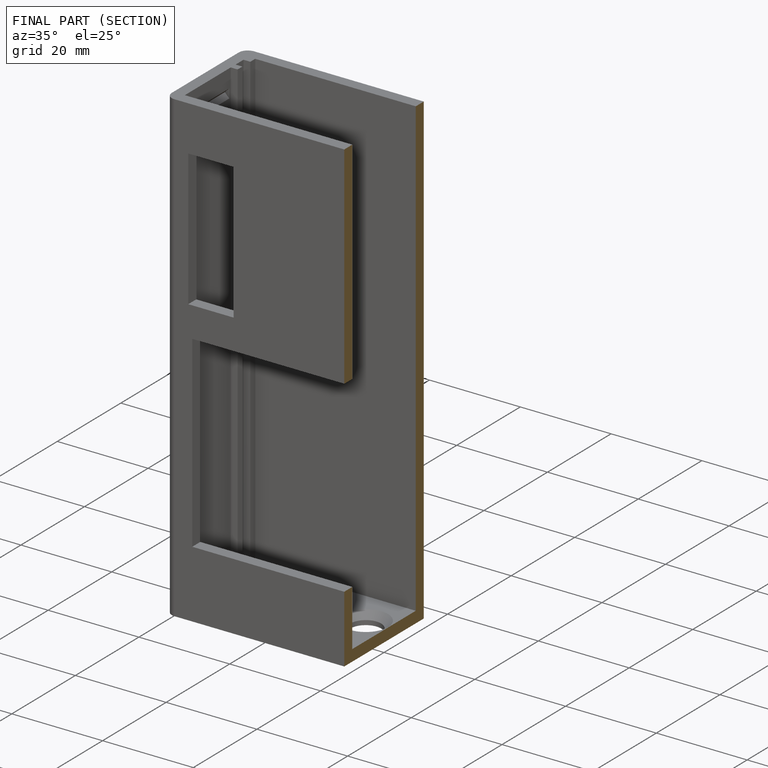
[diagram: finished part — half-section view (interior)]
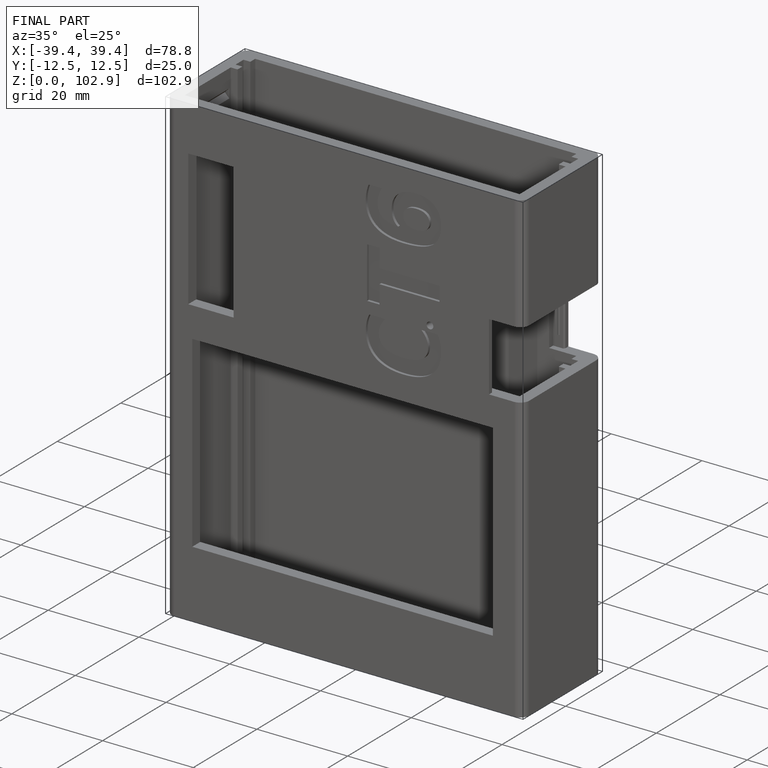
[diagram: finished part — iso view with bounding-box wireframe]
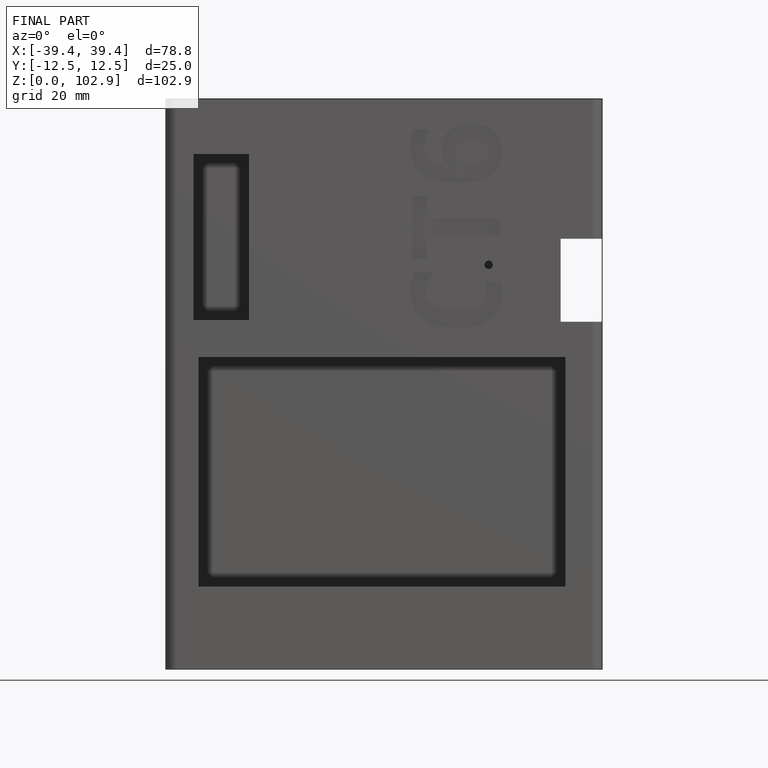
[diagram: finished part — front view with bounding-box wireframe]
